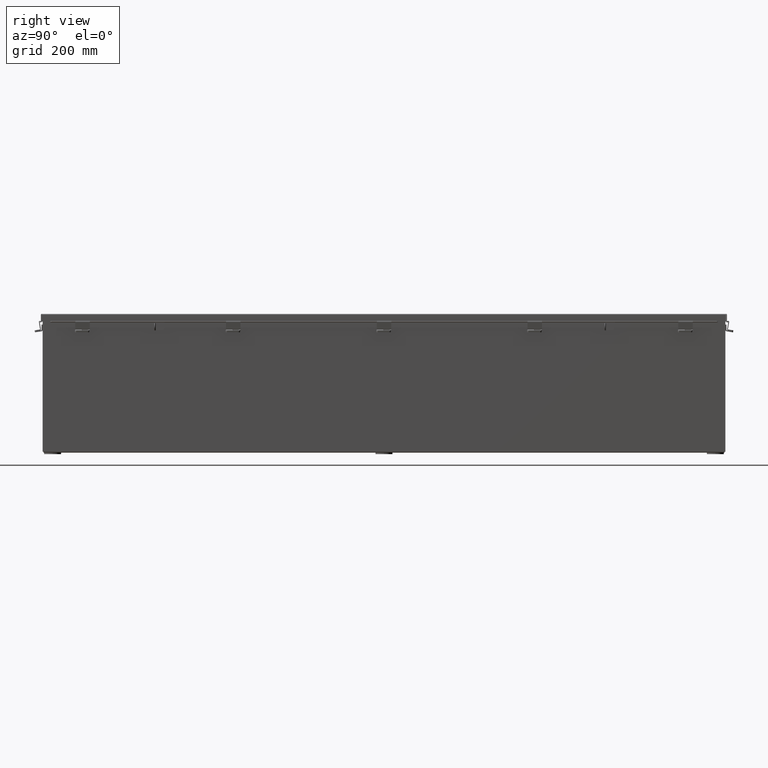
[diagram: clean part render]
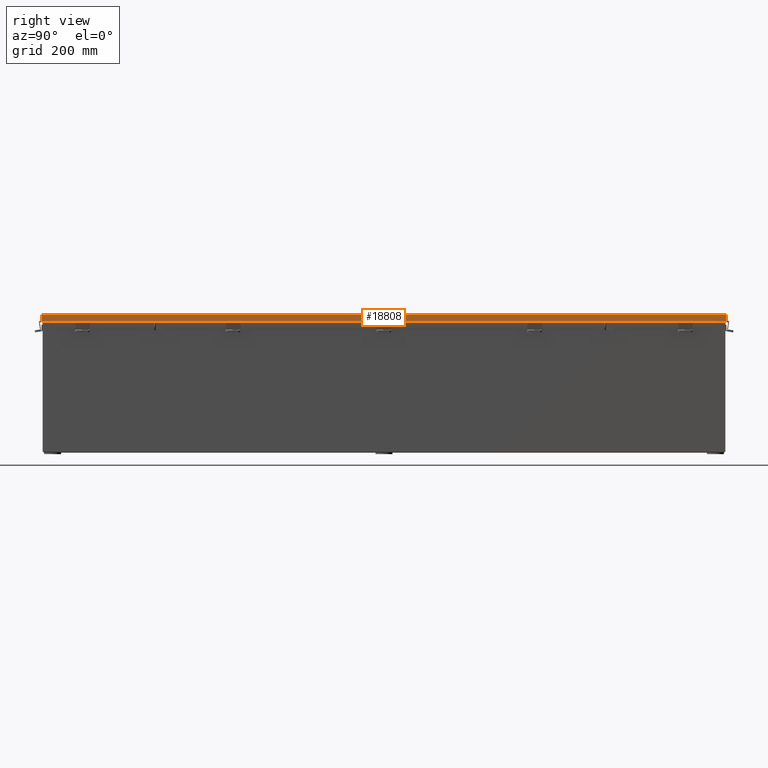
[diagram: same view with one face highlighted and labeled with its STEP entity id]
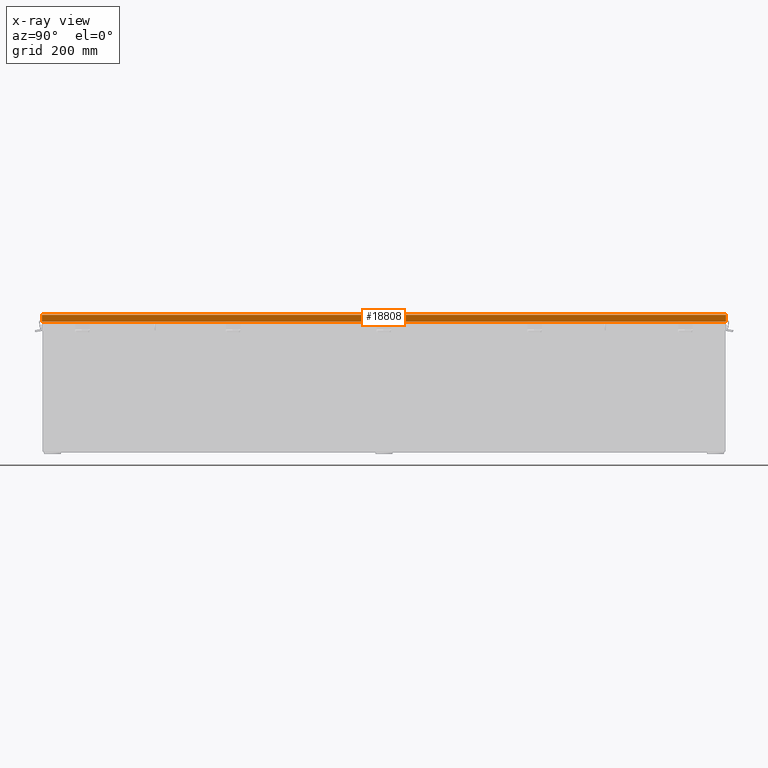
[diagram: x-ray of the same camera — body ghosted, the highlighted face saturated]
A machine part, right view. The second image highlights one B-rep face of the part: STEP entity #18808.
The next image is the same camera in x-ray: the body ghosted, the highlighted face saturated — about 0% of this face is hidden behind the body in this view.
In plain terms, the highlighted planar face has unit normal (-1, 0, -0).
Its self-contained STEP definition (entity closure, byte-faithful):
#354 = DIRECTION ( 'NONE',  ( -3.569293475308526100E-015, 2.765943548931161400E-029, 1.000000000000000000 ) ) ;
#821 = AXIS2_PLACEMENT_3D ( 'NONE', #18664, #12021, #35623 ) ;
#2521 = VECTOR ( 'NONE', #354, 39.37007874015748100 ) ;
#2724 = ORIENTED_EDGE ( 'NONE', *, *, #19591, .F. ) ;
#2843 = LINE ( 'NONE', #36724, #18701 ) ;
#3161 = VERTEX_POINT ( 'NONE', #8149 ) ;
#3190 = DIRECTION ( 'NONE',  ( 8.430680234606711500E-029, 1.000000000000000000, 2.773339119917619600E-029 ) ) ;
#3732 = EDGE_CURVE ( 'NONE', #15854, #20322, #41112, .T. ) ;
#3773 = VERTEX_POINT ( 'NONE', #25767 ) ;
#5521 = VECTOR ( 'NONE', #3190, 39.37007874015748100 ) ;
#6275 = VECTOR ( 'NONE', #8661, 39.37007874015748100 ) ;
#6637 = EDGE_CURVE ( 'NONE', #9478, #26686, #40097, .T. ) ;
#7313 = CARTESIAN_POINT ( 'NONE',  ( -6.156250000000024000, 29.32447893218808200, 0.6122999999999982900 ) ) ;
#7819 = EDGE_CURVE ( 'NONE', #9478, #40027, #29464, .T. ) ;
#8149 = CARTESIAN_POINT ( 'NONE',  ( -6.156250000000024000, 30.07447893218808200, 0.6122999999999982900 ) ) ;
#8456 = DIRECTION ( 'NONE',  ( 8.430680234606711500E-029, 1.000000000000000000, 2.773339119917619600E-029 ) ) ;
#8631 = PLANE ( 'NONE',  #821 ) ;
#8661 = DIRECTION ( 'NONE',  ( -8.430680234606711500E-029, -1.000000000000000000, -2.773339119917619600E-029 ) ) ;
#9247 = ORIENTED_EDGE ( 'NONE', *, *, #25135, .T. ) ;
#9478 = VERTEX_POINT ( 'NONE', #24299 ) ;
#10110 = LINE ( 'NONE', #25273, #34906 ) ;
#10395 = EDGE_CURVE ( 'NONE', #20322, #3773, #41426, .T. ) ;
#10554 = ORIENTED_EDGE ( 'NONE', *, *, #10395, .F. ) ;
#10958 = VERTEX_POINT ( 'NONE', #7313 ) ;
#11729 = CARTESIAN_POINT ( 'NONE',  ( -6.156250000000022200, 30.15624999999994700, 0.01299999999999792100 ) ) ;
#12021 = DIRECTION ( 'NONE',  ( 1.000000000000000000, 8.436021221414440400E-029, 3.569293475308526100E-015 ) ) ;
#15485 = CARTESIAN_POINT ( 'NONE',  ( -6.156250000000028400, 29.32447893218808200, 0.6122999999999982900 ) ) ;
#15854 = VERTEX_POINT ( 'NONE', #42435 ) ;
#16593 = ORIENTED_EDGE ( 'NONE', *, *, #35004, .T. ) ;
#16684 = LINE ( 'NONE', #15485, #41515 ) ;
#18152 = CARTESIAN_POINT ( 'NONE',  ( -6.156250000000024000, -30.07447893218818500, 0.6123000000000005100 ) ) ;
#18664 = CARTESIAN_POINT ( 'NONE',  ( -6.156250000000022200, 0.0000000000000000000, -2.185478394931410600E-014 ) ) ;
#18701 = VECTOR ( 'NONE', #43494, 39.37007874015748100 ) ;
#18808 = ADVANCED_FACE ( 'NONE', ( #21408 ), #8631, .F. ) ;
#18929 = DIRECTION ( 'NONE',  ( 3.504962610059870900E-013, -2.803970088047882500E-013, -1.000000000000000000 ) ) ;
#19591 = EDGE_CURVE ( 'NONE', #26686, #3161, #2843, .T. ) ;
#20322 = VERTEX_POINT ( 'NONE', #25887 ) ;
#20849 = ORIENTED_EDGE ( 'NONE', *, *, #3732, .F. ) ;
#21084 = CARTESIAN_POINT ( 'NONE',  ( -6.156250000000022200, 30.07447893218808200, 0.01299999999999792100 ) ) ;
#21093 = CARTESIAN_POINT ( 'NONE',  ( -6.156250000000023100, -29.32447893218818500, 0.5967115427318761000 ) ) ;
#21408 = FACE_OUTER_BOUND ( 'NONE', #32846, .T. ) ;
#22160 = VECTOR ( 'NONE', #38719, 39.37007874015748100 ) ;
#24233 = EDGE_CURVE ( 'NONE', #10958, #15854, #16684, .T. ) ;
#24299 = CARTESIAN_POINT ( 'NONE',  ( -6.156250000000022200, -30.07447893218818500, 0.01300000000000010700 ) ) ;
#25135 = EDGE_CURVE ( 'NONE', #40027, #3773, #41420, .T. ) ;
#25273 = CARTESIAN_POINT ( 'NONE',  ( -6.156250000000024000, 0.0000000000000000000, 0.6123000000000005100 ) ) ;
#25767 = CARTESIAN_POINT ( 'NONE',  ( -6.156250000000024000, -29.32447893218818500, 0.6123000000000005100 ) ) ;
#25887 = CARTESIAN_POINT ( 'NONE',  ( -6.156250000000024000, -29.32447893218818500, 0.5967115427318761000 ) ) ;
#26686 = VERTEX_POINT ( 'NONE', #21084 ) ;
#28874 = CARTESIAN_POINT ( 'NONE',  ( -6.156250000000023100, 29.32447893218808200, 0.5967115427318738800 ) ) ;
#29464 = LINE ( 'NONE', #40783, #2521 ) ;
#29713 = ORIENTED_EDGE ( 'NONE', *, *, #7819, .T. ) ;
#32846 = EDGE_LOOP ( 'NONE', ( #34382, #16593, #2724, #38937, #29713, #9247, #10554, #20849 ) ) ;
#34382 = ORIENTED_EDGE ( 'NONE', *, *, #24233, .F. ) ;
#34642 = DIRECTION ( 'NONE',  ( -1.401985044023780000E-013, 2.765943548931161400E-029, 1.000000000000000000 ) ) ;
#34906 = VECTOR ( 'NONE', #8456, 39.37007874015748100 ) ;
#35004 = EDGE_CURVE ( 'NONE', #10958, #3161, #10110, .T. ) ;
#35623 = DIRECTION ( 'NONE',  ( 3.569293475308526100E-015, -2.765943548931161400E-029, -1.000000000000000000 ) ) ;
#36724 = CARTESIAN_POINT ( 'NONE',  ( -6.156250000000022200, 30.07447893218808200, -2.185478394931410600E-015 ) ) ;
#38719 = DIRECTION ( 'NONE',  ( 8.430680234606711500E-029, 1.000000000000000000, 2.773339119917619600E-029 ) ) ;
#38937 = ORIENTED_EDGE ( 'NONE', *, *, #6637, .F. ) ;
#39313 = VECTOR ( 'NONE', #34642, 39.37007874015748100 ) ;
#40027 = VERTEX_POINT ( 'NONE', #18152 ) ;
#40097 = LINE ( 'NONE', #11729, #22160 ) ;
#40366 = CARTESIAN_POINT ( 'NONE',  ( -6.156250000000024000, 0.0000000000000000000, 0.6123000000000005100 ) ) ;
#40783 = CARTESIAN_POINT ( 'NONE',  ( -6.156250000000022200, -30.07447893218818500, -2.185478394931410600E-014 ) ) ;
#41112 = LINE ( 'NONE', #28874, #6275 ) ;
#41420 = LINE ( 'NONE', #40366, #5521 ) ;
#41426 = LINE ( 'NONE', #21093, #39313 ) ;
#41515 = VECTOR ( 'NONE', #18929, 39.37007874015748100 ) ;
#42435 = CARTESIAN_POINT ( 'NONE',  ( -6.156250000000024000, 29.32447893218807900, 0.5967115427318738800 ) ) ;
#43494 = DIRECTION ( 'NONE',  ( -3.569293475308526100E-015, 2.765943548931161400E-029, 1.000000000000000000 ) ) ;